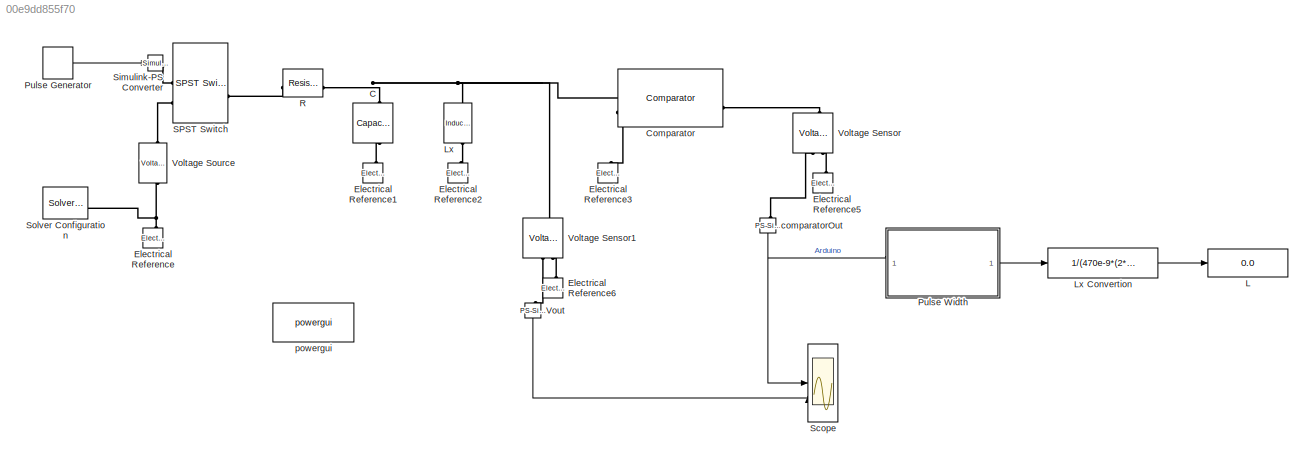
MODEL slx_00e9dd855f70
KIND model
CONFIG AbsTol = auto
CONFIG EnableMultiTasking = off
CONFIG FixedStep = auto
CONFIG MaxStep = auto
CONFIG MinStep = auto
CONFIG RelTol = 1e-6
CONFIG SampleTimeConstraint = Unconstrained
CONFIG SolverName = VariableStepAuto
CONFIG StartTime = 0.0
CONFIG StopTime = 0.1
BLOCK [Reference] C  REF=ee_lib/Passive/Capacitor
  NameLocation = right
  SourceBlock = ee_lib/Passive/Capacitor
  SourceType = Capacitor
BLOCK [Reference] Comparator  REF=ee_lib/Integrated Circuits/Comparator
  SourceBlock = ee_lib/Integrated Circuits/Comparator
  SourceType = Comparator
BLOCK [Reference] Electrical Reference  REF=fl_lib/Electrical/Electrical Elements/Electrical Reference
  NameLocation = right
  SourceBlock = fl_lib/Electrical/Electrical Elements/Electrical Reference
  SourceType = Electrical Reference
BLOCK [Reference] Electrical Reference1  REF=fl_lib/Electrical/Electrical Elements/Electrical Reference
  NameLocation = right
  SourceBlock = fl_lib/Electrical/Electrical Elements/Electrical Reference
  SourceType = Electrical Reference
BLOCK [Reference] Electrical Reference2  REF=fl_lib/Electrical/Electrical Elements/Electrical Reference
  NameLocation = right
  SourceBlock = fl_lib/Electrical/Electrical Elements/Electrical Reference
  SourceType = Electrical Reference
BLOCK [Reference] Electrical Reference3  REF=fl_lib/Electrical/Electrical Elements/Electrical Reference
  NameLocation = right
  SourceBlock = fl_lib/Electrical/Electrical Elements/Electrical Reference
  SourceType = Electrical Reference
BLOCK [Reference] Electrical Reference5  REF=fl_lib/Electrical/Electrical Elements/Electrical Reference
  NameLocation = right
  SourceBlock = fl_lib/Electrical/Electrical Elements/Electrical Reference
  SourceType = Electrical Reference
BLOCK [Reference] Electrical Reference6  REF=fl_lib/Electrical/Electrical Elements/Electrical Reference
  NameLocation = right
  SourceBlock = fl_lib/Electrical/Electrical Elements/Electrical Reference
  SourceType = Electrical Reference
BLOCK [Display] L
  Decimation = 1
  Format = short_e
BLOCK [Reference] Lx  REF=ee_lib/Passive/Inductor
  NameLocation = right
  SourceBlock = ee_lib/Passive/Inductor
  SourceType = Inductor
BLOCK [Fcn] Lx Convertion
  Expr = 1/(470e-9*(2*pi/u)^2)
BLOCK [DiscretePulseGenerator] Pulse Generator
  Amplitude = 5
  Period = 0.5
  PhaseDelay = 0.01
  PulseType = Time based
  PulseWidth = 10
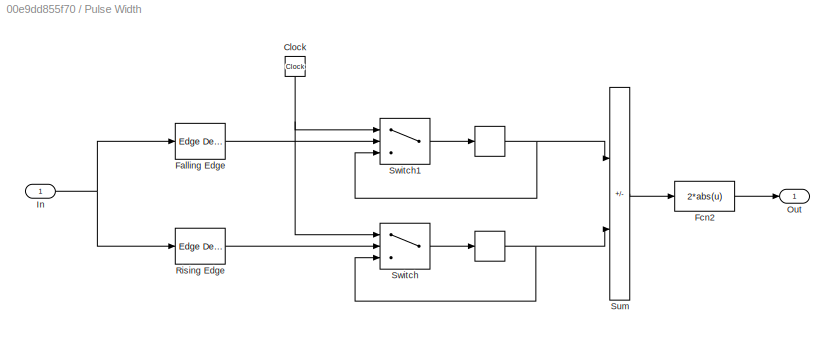
BLOCK [SubSystem] Pulse Width
BLOCK [Memory] Pulse Width/ 
BLOCK [Memory] Pulse Width/  
BLOCK [Clock] Pulse Width/Clock
  NameLocation = left
BLOCK [Reference] Pulse Width/Falling Edge  REF=spsEdgeDetectorLib/Edge Detector
  LibrarySourceBlock = sps_lib/Control/Edge Detector
  SourceBlock = spsEdgeDetectorLib/Edge Detector
  SourceType = Edge Detector
BLOCK [Fcn] Pulse Width/Fcn2
  Expr = 2*abs(u)
BLOCK [Inport] Pulse Width/In
BLOCK [Outport] Pulse Width/Out
BLOCK [Reference] Pulse Width/Rising Edge  REF=spsEdgeDetectorLib/Edge Detector
  LibrarySourceBlock = sps_lib/Control/Edge Detector
  SourceBlock = spsEdgeDetectorLib/Edge Detector
  SourceType = Edge Detector
BLOCK [Sum] Pulse Width/Sum
  IconShape = rectangular
  Inputs = +-
BLOCK [Switch] Pulse Width/Switch
  Criteria = u2 > Threshold
  InputSameDT = off
  SaturateOnIntegerOverflow = off
  Threshold = 0.1
BLOCK [Switch] Pulse Width/Switch1
  Criteria = u2 > Threshold
  InputSameDT = off
  SaturateOnIntegerOverflow = off
  Threshold = 0.1
BLOCK [Reference] R  REF=ee_lib/Passive/Resistor
  SourceBlock = ee_lib/Passive/Resistor
  SourceType = Resistor
BLOCK [Reference] SPST Switch  REF=ee_lib/Switches & Breakers/SPST Switch
  SourceBlock = ee_lib/Switches & Breakers/SPST Switch
  SourceType = SPST Switch
BLOCK [Scope] Scope
  ActiveDisplayYMaximum = 5.71451
  ActiveDisplayYMinimum = -1.43306
  Floating = off
  GraphicalSettings = {"GraphicalSettings":{"LegacySettings":true,"Style":{"AxesScalingProperties":{"ScaleAxesLimitsAtStop":false},"Style":{"AxesColor":"[0 0 0]","ChannelNames":[""],"ColorOrder":"[1 1 0.0666666666666667;0.0745098039215686 0.623529411764706 1;1 0.411764705882353 0.16078431372549;0.392156862745098 0.831372549019608 0.0745098039215686;0.717647058823529 0.274509803921569 1;0.0588235294117647 1 1;1 0.074509...<+450ch>
  MultipleDisplayCache = [{"MaxYLimMag":5.71451,"MaxYLimReal":5.71451,"MinYLimMag":0,"MinYLimReal":-1.43306,"PlotAsMagnitudePhase":false,"ShowGrid":true,"ShowLegend":true,"Title":"%<SignalLabel>","YLabel":""}]
  NumInputPorts = 2
  ShowLegend = on
  WasSavedAsWebScope = on
  WindowPosition = [235 158 560 326]
BLOCK [Reference] Simulink-PS Converter  REF=nesl_utility/Simulink-PS
Converter
  SourceBlock = nesl_utility/Simulink-PS\nConverter
  SourceType = Simulink-PS\nConverter
BLOCK [Reference] Solver Configuration  REF=nesl_utility/Solver
Configuration
  SourceBlock = nesl_utility/Solver\nConfiguration
  SourceType = Solver\nConfiguration
BLOCK [Reference] Voltage Sensor  REF=fl_lib/Electrical/Electrical Sensors/Voltage Sensor
  LibrarySourceBlock = ee_lib/Sensors &\nTransducers/Voltage Sensor
  NameLocation = right
  SourceBlock = fl_lib/Electrical/Electrical Sensors/Voltage Sensor
  SourceType = Voltage Sensor
BLOCK [Reference] Voltage Sensor1  REF=fl_lib/Electrical/Electrical Sensors/Voltage Sensor
  LibrarySourceBlock = ee_lib/Sensors &\nTransducers/Voltage Sensor
  NameLocation = right
  SourceBlock = fl_lib/Electrical/Electrical Sensors/Voltage Sensor
  SourceType = Voltage Sensor
BLOCK [Reference] Voltage Source  REF=ee_lib/Sources/Voltage Source
  NameLocation = right
  SourceBlock = ee_lib/Sources/Voltage Source
  SourceType = Voltage Source
BLOCK [Reference] Vout  REF=nesl_utility/PS-Simulink
Converter
  NameLocation = left
  SourceBlock = nesl_utility/PS-Simulink\nConverter
  SourceType = PS-Simulink\nConverter
BLOCK [Reference] comparatorOut  REF=nesl_utility/PS-Simulink
Converter
  NameLocation = left
  SourceBlock = nesl_utility/PS-Simulink\nConverter
  SourceType = PS-Simulink\nConverter
BLOCK [Reference] powergui  REF=spspowerguiLib/powergui
  LibrarySourceBlock = sps_lib/powergui
  Priority = 1
  SourceBlock = spspowerguiLib/powergui
  SourceType = PSB option menu block
LINE Lx Convertion:1 -> L:1
LINE Pulse Generator:1 -> Simulink-PS Converter:1
NET Pulse Width/  :1 -> Pulse Width/Sum:2, Pulse Width/Switch:3
NET Pulse Width/ :1 -> Pulse Width/Sum:1, Pulse Width/Switch1:3
NET Pulse Width/Clock:1 -> Pulse Width/Switch1:1, Pulse Width/Switch:1
LINE Pulse Width/Falling Edge:1 -> Pulse Width/Switch1:2
LINE Pulse Width/Fcn2:1 -> Pulse Width/Out:1
NET Pulse Width/In:1 -> Pulse Width/Falling Edge:1, Pulse Width/Rising Edge:1
LINE Pulse Width/Rising Edge:1 -> Pulse Width/Switch:2
LINE Pulse Width/Sum:1 -> Pulse Width/Fcn2:1
LINE Pulse Width/Switch1:1 -> Pulse Width/ :1
LINE Pulse Width/Switch:1 -> Pulse Width/  :1
LINE Pulse Width:1 -> Lx Convertion:1
LINE Vout:1 -> Scope:2
NET comparatorOut:1 -> Pulse Width:1, Scope:1
PNET net1: C:LConn1 -- Comparator:LConn1 -- Lx:LConn1 -- R:RConn1 -- Voltage Sensor1:LConn1
PLINE C:RConn1 -- Electrical Reference1:LConn1
PLINE Comparator:LConn2 -- Electrical Reference3:LConn1
PLINE Comparator:RConn1 -- Voltage Sensor:LConn1
PLINE Electrical Reference2:LConn1 -- Lx:RConn1
PLINE Electrical Reference5:LConn1 -- Voltage Sensor:RConn2
PLINE Electrical Reference6:LConn1 -- Voltage Sensor1:RConn2
PNET net2: Electrical Reference:LConn1 -- Solver Configuration:RConn1 -- Voltage Source:RConn1
PLINE R:LConn1 -- SPST Switch:RConn1
PLINE SPST Switch:LConn1 -- Simulink-PS Converter:RConn1
PLINE SPST Switch:LConn2 -- Voltage Source:LConn1
PLINE Voltage Sensor1:RConn1 -- Vout:LConn1
PLINE Voltage Sensor:RConn1 -- comparatorOut:LConn1
note: NET lines group one-source signal fan-out (src -> all destinations, sorted); 1:1 wires keep LINE; PNET lines group multi-terminal physical nets as a canonical sorted terminal list (undirected conserving connections); 2-terminal nets keep the pairwise PLINE form
